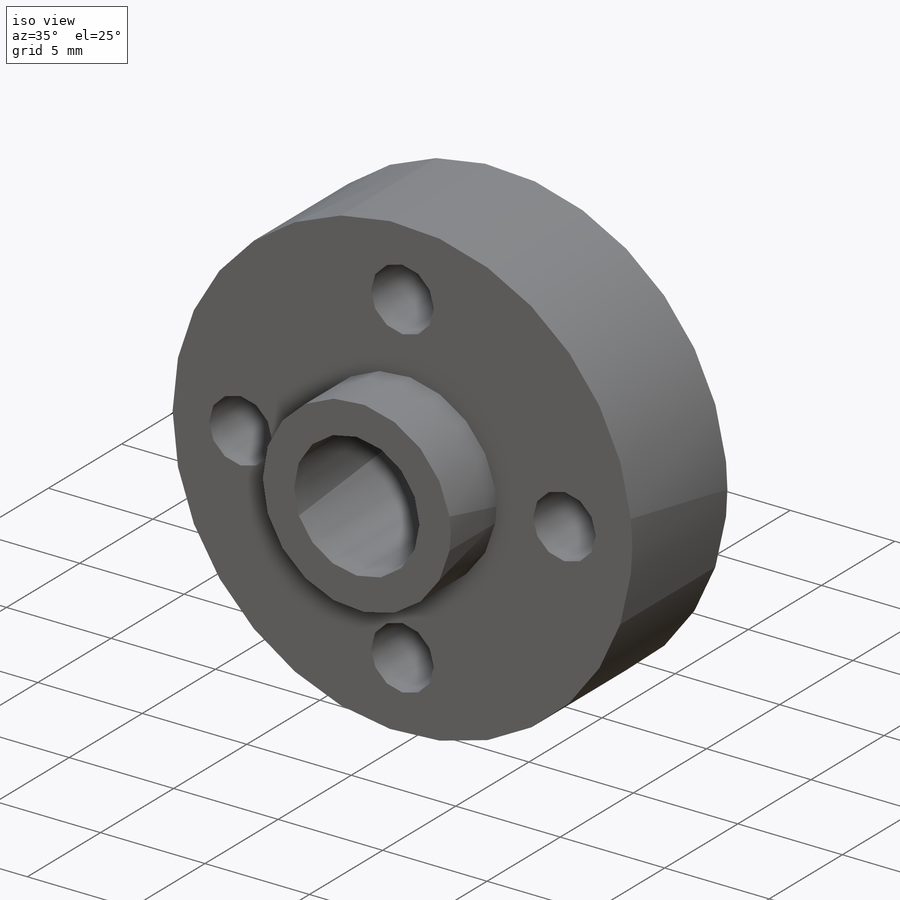
[diagram: iso view]
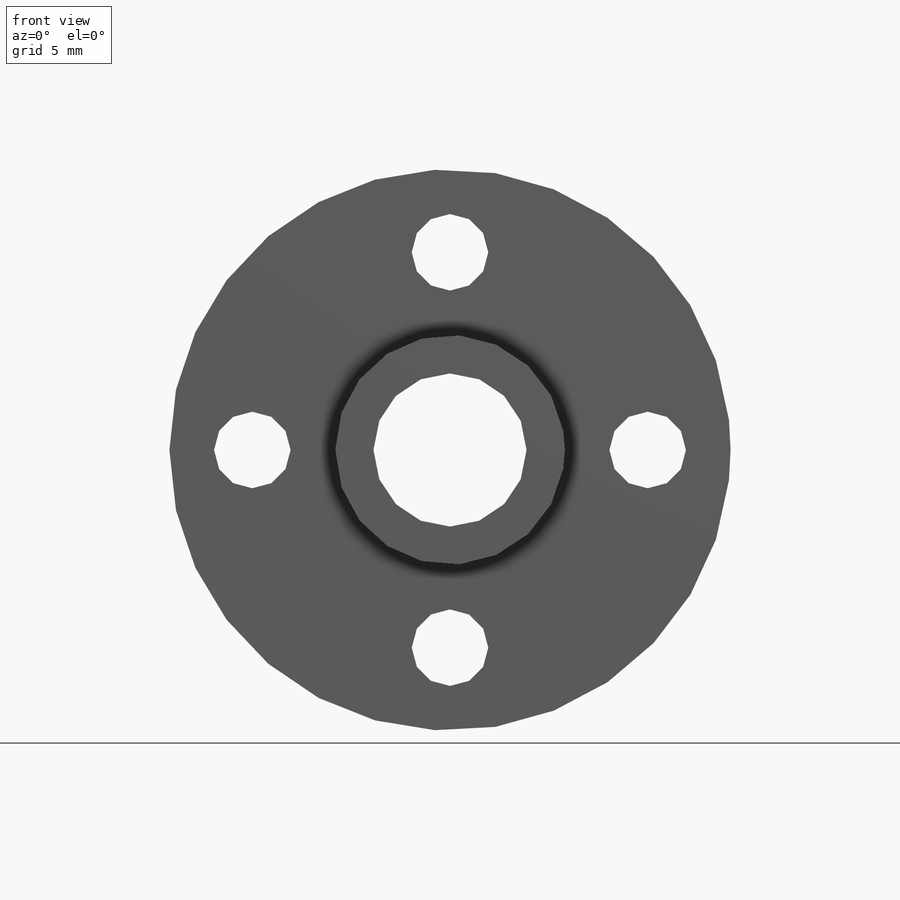
[diagram: front view]
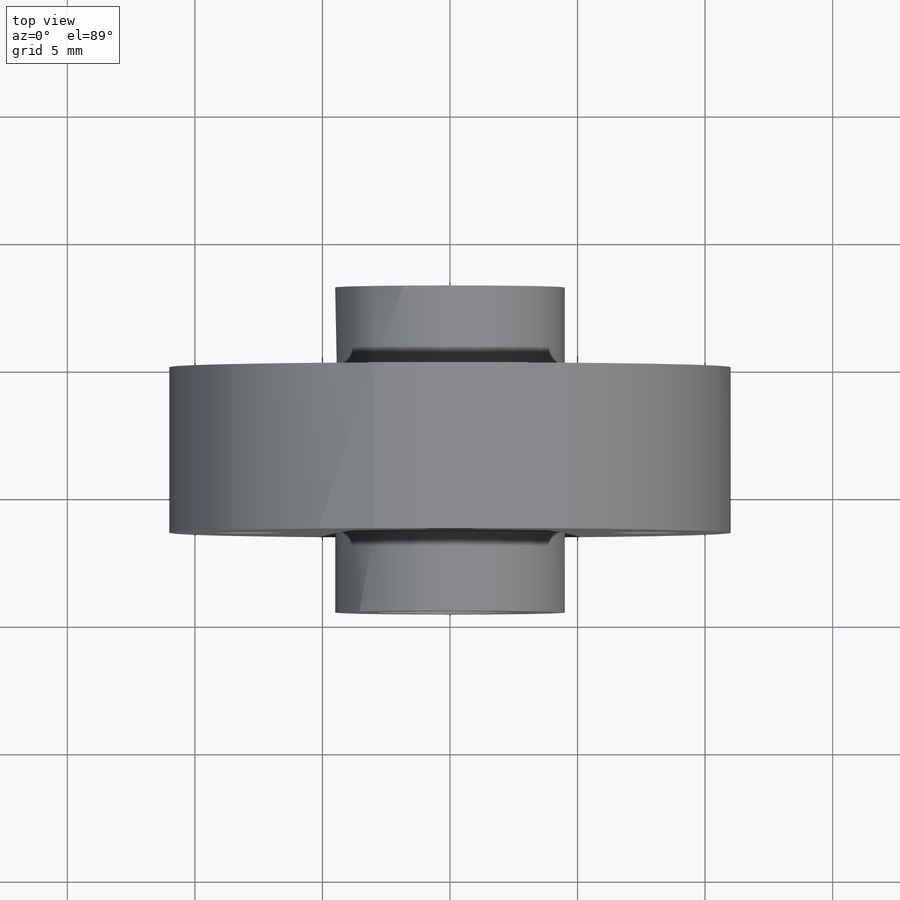
[diagram: top view]
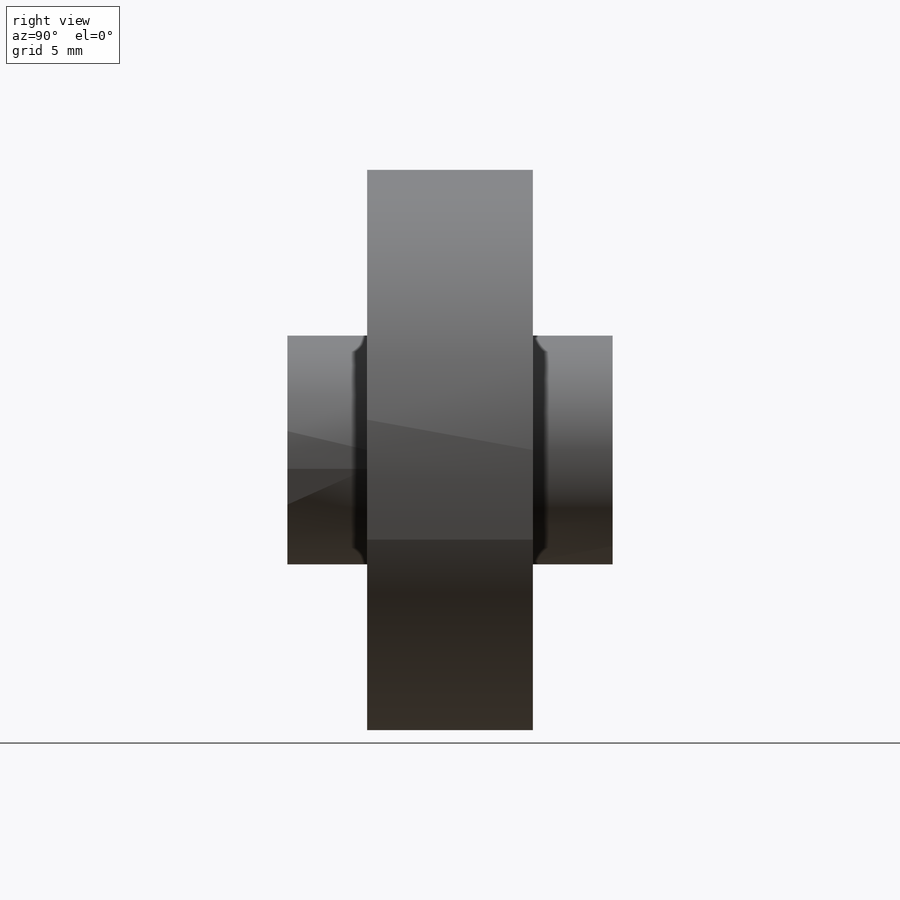
[diagram: right view]
SOLIDWORKS PART (.sldprt)
format: sldprt  version: not decoded by parser v0  size: 96,256 bytes
history: native  units: mm
features: sketch x4, plane x3, extrude x3, material x1, cut_extrude x1 (+10 scaffold rows collapsed)
feature tree (22):
  scaffold x10  (default folders/planes/origin — collapsed)
  material  "Matériau <non spécifié>"
  plane  "Plan de face"
  plane  "Plan de dessus"
  plane  "Plan de droite"
  sketch  "Esquisse1"  dims[D1=22.0mm D2=6.0mm]
  extrude  "Extrusion1"  Depth=6.5mm
  sketch  "Esquisse3"  dims[c1.D1=6.0mm c1.D2=6.0mm c2.D1=1.5mm]
  extrude  "Extrusion2"  Depth=3.125mm
  sketch  "Esquisse4"  dims[D1=6.0mm D2=1.5mm]
  extrude  "Extrusion3"  Depth=3.125mm
  sketch  "Esquisse5"  dims[c1.D1=3.0mm c1.D2=22.0mm c1.D3=3.0mm c1.D4=3.0mm c1.D5=3.0mm c2.D2=11.0mm c3.D2=7.75mm c3.D4=7.75mm]
  cut_extrude  "Enlèv. mat.-Extru.1"  [1 undecoded]
decode coverage: 7 of 8 modeling features carry decoded parameters
note: 1 parameter value undecoded
note: suppression state not decoded; provenance and decode notes live in map.json
